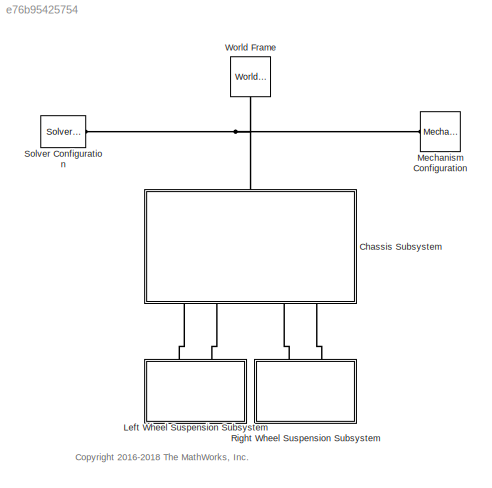
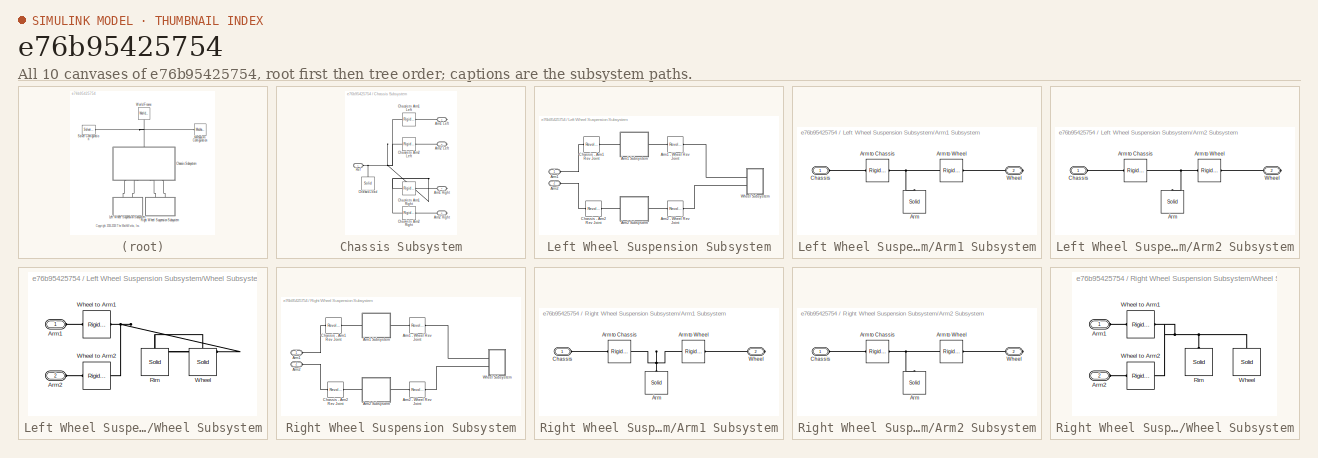
[diagram: thumbnail index - all 10 canvases of the model, root first then tree order]
MODEL slx_e76b95425754
KIND model
CONFIG AbsTol = auto
CONFIG EnableMultiTasking = on
CONFIG FixedStep = auto
CONFIG MaxStep = auto
CONFIG MinStep = auto
CONFIG PreLoadFcn = susp_ex_params
CONFIG RelTol = 1e-3
CONFIG SampleTimeConstraint = Unconstrained
CONFIG Solver = ode45
CONFIG SolverName = ode45
CONFIG StartTime = 0.0
CONFIG StopTime = 10
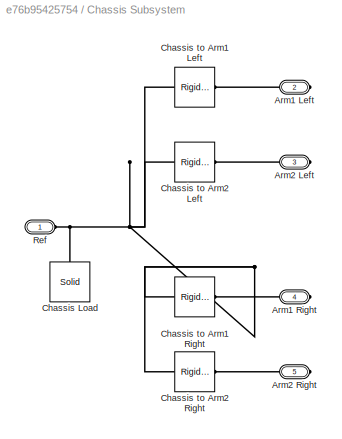
BLOCK [SubSystem] Chassis Subsystem
  Ports = [0, 0, 0, 0, 0, 1, 4]
  RequestExecContextInheritance = off
  Variant = off
BLOCK [PMIOPort] Chassis Subsystem/Arm1 Left
  Port = 2
  Side = Right
BLOCK [PMIOPort] Chassis Subsystem/Arm1 Right
  Port = 4
  Side = Right
BLOCK [PMIOPort] Chassis Subsystem/Arm2 Left
  Port = 3
  Side = Right
BLOCK [PMIOPort] Chassis Subsystem/Arm2 Right
  Port = 5
  Side = Right
BLOCK [Reference] Chassis Subsystem/Chassis Load  REF=sm_lib/Body Elements/Solid
  Ports = [0, 0, 0, 0, 0, 0, 1]
  SourceBlock = sm_lib/Body Elements/Solid
  SourceProductBaseCode = MS
  SourceProductName = Simscape Multibody
  SourceType = Solid
BLOCK [Reference] Chassis Subsystem/Chassis to Arm1 Left  REF=sm_lib/Frames and
Transforms/Rigid
Transform
  Ports = [0, 0, 0, 0, 0, 1, 1]
  SourceBlock = sm_lib/Frames and\nTransforms/Rigid\nTransform
  SourceProductBaseCode = MS
  SourceProductName = Simscape Multibody
  SourceType = Rigid\nTransform
BLOCK [Reference] Chassis Subsystem/Chassis to Arm1 Right  REF=sm_lib/Frames and
Transforms/Rigid
Transform
  Ports = [0, 0, 0, 0, 0, 1, 1]
  SourceBlock = sm_lib/Frames and\nTransforms/Rigid\nTransform
  SourceProductBaseCode = MS
  SourceProductName = Simscape Multibody
  SourceType = Rigid\nTransform
BLOCK [Reference] Chassis Subsystem/Chassis to Arm2 Left  REF=sm_lib/Frames and
Transforms/Rigid
Transform
  Ports = [0, 0, 0, 0, 0, 1, 1]
  SourceBlock = sm_lib/Frames and\nTransforms/Rigid\nTransform
  SourceProductBaseCode = MS
  SourceProductName = Simscape Multibody
  SourceType = Rigid\nTransform
BLOCK [Reference] Chassis Subsystem/Chassis to Arm2 Right  REF=sm_lib/Frames and
Transforms/Rigid
Transform
  Ports = [0, 0, 0, 0, 0, 1, 1]
  SourceBlock = sm_lib/Frames and\nTransforms/Rigid\nTransform
  SourceProductBaseCode = MS
  SourceProductName = Simscape Multibody
  SourceType = Rigid\nTransform
BLOCK [PMIOPort] Chassis Subsystem/Ref
  Port = 1
  Side = Left
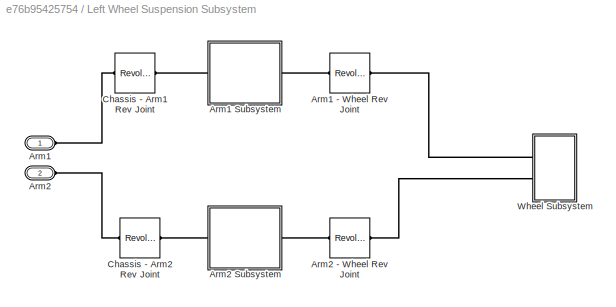
BLOCK [SubSystem] Left Wheel Suspension Subsystem
  Ports = [0, 0, 0, 0, 0, 2]
  RequestExecContextInheritance = off
  Variant = off
BLOCK [PMIOPort] Left Wheel Suspension Subsystem/Arm1
  Port = 1
  Side = Left
BLOCK [Reference] Left Wheel Suspension Subsystem/Arm1 - Wheel Rev Joint  REF=sm_lib/Joints/Revolute Joint
  Ports = [0, 0, 0, 0, 0, 1, 1]
  SourceBlock = sm_lib/Joints/Revolute Joint
  SourceProductBaseCode = MS
  SourceProductName = Simscape Multibody
  SourceType = Revolute Joint
BLOCK [SubSystem] Left Wheel Suspension Subsystem/Arm1 Subsystem
  Ports = [0, 0, 0, 0, 0, 1, 1]
  RequestExecContextInheritance = off
  Variant = off
BLOCK [Reference] Left Wheel Suspension Subsystem/Arm1 Subsystem/Arm  REF=sm_lib/Body Elements/Solid
  Ports = [0, 0, 0, 0, 0, 0, 1]
  SourceBlock = sm_lib/Body Elements/Solid
  SourceProductBaseCode = MS
  SourceProductName = Simscape Multibody
  SourceType = Solid
BLOCK [Reference] Left Wheel Suspension Subsystem/Arm1 Subsystem/Arm to Chassis  REF=sm_lib/Frames and
Transforms/Rigid
Transform
  Ports = [0, 0, 0, 0, 0, 1, 1]
  SourceBlock = sm_lib/Frames and\nTransforms/Rigid\nTransform
  SourceProductBaseCode = MS
  SourceProductName = Simscape Multibody
  SourceType = Rigid\nTransform
BLOCK [Reference] Left Wheel Suspension Subsystem/Arm1 Subsystem/Arm to Wheel  REF=sm_lib/Frames and
Transforms/Rigid
Transform
  Ports = [0, 0, 0, 0, 0, 1, 1]
  SourceBlock = sm_lib/Frames and\nTransforms/Rigid\nTransform
  SourceProductBaseCode = MS
  SourceProductName = Simscape Multibody
  SourceType = Rigid\nTransform
BLOCK [PMIOPort] Left Wheel Suspension Subsystem/Arm1 Subsystem/Chassis
  Port = 1
  Side = Left
BLOCK [PMIOPort] Left Wheel Suspension Subsystem/Arm1 Subsystem/Wheel
  Port = 2
  Side = Right
BLOCK [PMIOPort] Left Wheel Suspension Subsystem/Arm2
  Port = 2
  Side = Left
BLOCK [Reference] Left Wheel Suspension Subsystem/Arm2 - Wheel Rev Joint  REF=sm_lib/Joints/Revolute Joint
  Ports = [0, 0, 0, 0, 0, 1, 1]
  SourceBlock = sm_lib/Joints/Revolute Joint
  SourceProductBaseCode = MS
  SourceProductName = Simscape Multibody
  SourceType = Revolute Joint
BLOCK [SubSystem] Left Wheel Suspension Subsystem/Arm2 Subsystem
  Ports = [0, 0, 0, 0, 0, 1, 1]
  RequestExecContextInheritance = off
  Variant = off
BLOCK [Reference] Left Wheel Suspension Subsystem/Arm2 Subsystem/Arm  REF=sm_lib/Body Elements/Solid
  Ports = [0, 0, 0, 0, 0, 0, 1]
  SourceBlock = sm_lib/Body Elements/Solid
  SourceProductBaseCode = MS
  SourceProductName = Simscape Multibody
  SourceType = Solid
BLOCK [Reference] Left Wheel Suspension Subsystem/Arm2 Subsystem/Arm to Chassis  REF=sm_lib/Frames and
Transforms/Rigid
Transform
  Ports = [0, 0, 0, 0, 0, 1, 1]
  SourceBlock = sm_lib/Frames and\nTransforms/Rigid\nTransform
  SourceProductBaseCode = MS
  SourceProductName = Simscape Multibody
  SourceType = Rigid\nTransform
BLOCK [Reference] Left Wheel Suspension Subsystem/Arm2 Subsystem/Arm to Wheel  REF=sm_lib/Frames and
Transforms/Rigid
Transform
  Ports = [0, 0, 0, 0, 0, 1, 1]
  SourceBlock = sm_lib/Frames and\nTransforms/Rigid\nTransform
  SourceProductBaseCode = MS
  SourceProductName = Simscape Multibody
  SourceType = Rigid\nTransform
BLOCK [PMIOPort] Left Wheel Suspension Subsystem/Arm2 Subsystem/Chassis
  Port = 1
  Side = Left
BLOCK [PMIOPort] Left Wheel Suspension Subsystem/Arm2 Subsystem/Wheel
  Port = 2
  Side = Right
BLOCK [Reference] Left Wheel Suspension Subsystem/Chassis - Arm1 Rev Joint  REF=sm_lib/Joints/Revolute Joint
  Ports = [0, 0, 0, 0, 0, 1, 1]
  SourceBlock = sm_lib/Joints/Revolute Joint
  SourceProductBaseCode = MS
  SourceProductName = Simscape Multibody
  SourceType = Revolute Joint
BLOCK [Reference] Left Wheel Suspension Subsystem/Chassis - Arm2 Rev Joint  REF=sm_lib/Joints/Revolute Joint
  Ports = [0, 0, 0, 0, 0, 1, 1]
  SourceBlock = sm_lib/Joints/Revolute Joint
  SourceProductBaseCode = MS
  SourceProductName = Simscape Multibody
  SourceType = Revolute Joint
BLOCK [SubSystem] Left Wheel Suspension Subsystem/Wheel Subsystem
  Ports = [0, 0, 0, 0, 0, 2]
  RequestExecContextInheritance = off
  Variant = off
BLOCK [PMIOPort] Left Wheel Suspension Subsystem/Wheel Subsystem/Arm1
  Port = 1
  Side = Left
BLOCK [PMIOPort] Left Wheel Suspension Subsystem/Wheel Subsystem/Arm2
  Port = 2
  Side = Left
BLOCK [Reference] Left Wheel Suspension Subsystem/Wheel Subsystem/Rim  REF=sm_lib/Body Elements/Solid
  Ports = [0, 0, 0, 0, 0, 0, 1]
  SourceBlock = sm_lib/Body Elements/Solid
  SourceProductBaseCode = MS
  SourceProductName = Simscape Multibody
  SourceType = Solid
BLOCK [Reference] Left Wheel Suspension Subsystem/Wheel Subsystem/Wheel  REF=sm_lib/Body Elements/Solid
  Ports = [0, 0, 0, 0, 0, 0, 1]
  SourceBlock = sm_lib/Body Elements/Solid
  SourceProductBaseCode = MS
  SourceProductName = Simscape Multibody
  SourceType = Solid
BLOCK [Reference] Left Wheel Suspension Subsystem/Wheel Subsystem/Wheel to Arm1  REF=sm_lib/Frames and
Transforms/Rigid
Transform
  Ports = [0, 0, 0, 0, 0, 1, 1]
  SourceBlock = sm_lib/Frames and\nTransforms/Rigid\nTransform
  SourceProductBaseCode = MS
  SourceProductName = Simscape Multibody
  SourceType = Rigid\nTransform
BLOCK [Reference] Left Wheel Suspension Subsystem/Wheel Subsystem/Wheel to Arm2  REF=sm_lib/Frames and
Transforms/Rigid
Transform
  Ports = [0, 0, 0, 0, 0, 1, 1]
  SourceBlock = sm_lib/Frames and\nTransforms/Rigid\nTransform
  SourceProductBaseCode = MS
  SourceProductName = Simscape Multibody
  SourceType = Rigid\nTransform
BLOCK [Reference] Mechanism Configuration  REF=sm_lib/Utilities/Mechanism
Configuration
  Ports = [0, 0, 0, 0, 0, 0, 1]
  SourceBlock = sm_lib/Utilities/Mechanism\nConfiguration
  SourceProductBaseCode = MS
  SourceProductName = Simscape Multibody
  SourceType = Mechanism\nConfiguration
BLOCK [SubSystem] Right Wheel Suspension Subsystem
  Ports = [0, 0, 0, 0, 0, 2]
  RequestExecContextInheritance = off
  Variant = off
BLOCK [PMIOPort] Right Wheel Suspension Subsystem/Arm1
  Port = 1
  Side = Left
BLOCK [Reference] Right Wheel Suspension Subsystem/Arm1 - Wheel Rev Joint  REF=sm_lib/Joints/Revolute Joint
  Ports = [0, 0, 0, 0, 0, 1, 1]
  SourceBlock = sm_lib/Joints/Revolute Joint
  SourceProductBaseCode = MS
  SourceProductName = Simscape Multibody
  SourceType = Revolute Joint
BLOCK [SubSystem] Right Wheel Suspension Subsystem/Arm1 Subsystem
  Ports = [0, 0, 0, 0, 0, 1, 1]
  RequestExecContextInheritance = off
  Variant = off
BLOCK [Reference] Right Wheel Suspension Subsystem/Arm1 Subsystem/Arm  REF=sm_lib/Body Elements/Solid
  Ports = [0, 0, 0, 0, 0, 0, 1]
  SourceBlock = sm_lib/Body Elements/Solid
  SourceProductBaseCode = MS
  SourceProductName = Simscape Multibody
  SourceType = Solid
BLOCK [Reference] Right Wheel Suspension Subsystem/Arm1 Subsystem/Arm to Chassis  REF=sm_lib/Frames and
Transforms/Rigid
Transform
  Ports = [0, 0, 0, 0, 0, 1, 1]
  SourceBlock = sm_lib/Frames and\nTransforms/Rigid\nTransform
  SourceProductBaseCode = MS
  SourceProductName = Simscape Multibody
  SourceType = Rigid\nTransform
BLOCK [Reference] Right Wheel Suspension Subsystem/Arm1 Subsystem/Arm to Wheel  REF=sm_lib/Frames and
Transforms/Rigid
Transform
  Ports = [0, 0, 0, 0, 0, 1, 1]
  SourceBlock = sm_lib/Frames and\nTransforms/Rigid\nTransform
  SourceProductBaseCode = MS
  SourceProductName = Simscape Multibody
  SourceType = Rigid\nTransform
BLOCK [PMIOPort] Right Wheel Suspension Subsystem/Arm1 Subsystem/Chassis
  Port = 1
  Side = Left
BLOCK [PMIOPort] Right Wheel Suspension Subsystem/Arm1 Subsystem/Wheel
  Port = 2
  Side = Right
BLOCK [PMIOPort] Right Wheel Suspension Subsystem/Arm2
  Port = 2
  Side = Left
BLOCK [Reference] Right Wheel Suspension Subsystem/Arm2 - Wheel Rev Joint  REF=sm_lib/Joints/Revolute Joint
  Ports = [0, 0, 0, 0, 0, 1, 1]
  SourceBlock = sm_lib/Joints/Revolute Joint
  SourceProductBaseCode = MS
  SourceProductName = Simscape Multibody
  SourceType = Revolute Joint
BLOCK [SubSystem] Right Wheel Suspension Subsystem/Arm2 Subsystem
  Ports = [0, 0, 0, 0, 0, 1, 1]
  RequestExecContextInheritance = off
  Variant = off
BLOCK [Reference] Right Wheel Suspension Subsystem/Arm2 Subsystem/Arm  REF=sm_lib/Body Elements/Solid
  Ports = [0, 0, 0, 0, 0, 0, 1]
  SourceBlock = sm_lib/Body Elements/Solid
  SourceProductBaseCode = MS
  SourceProductName = Simscape Multibody
  SourceType = Solid
BLOCK [Reference] Right Wheel Suspension Subsystem/Arm2 Subsystem/Arm to Chassis  REF=sm_lib/Frames and
Transforms/Rigid
Transform
  Ports = [0, 0, 0, 0, 0, 1, 1]
  SourceBlock = sm_lib/Frames and\nTransforms/Rigid\nTransform
  SourceProductBaseCode = MS
  SourceProductName = Simscape Multibody
  SourceType = Rigid\nTransform
BLOCK [Reference] Right Wheel Suspension Subsystem/Arm2 Subsystem/Arm to Wheel  REF=sm_lib/Frames and
Transforms/Rigid
Transform
  Ports = [0, 0, 0, 0, 0, 1, 1]
  SourceBlock = sm_lib/Frames and\nTransforms/Rigid\nTransform
  SourceProductBaseCode = MS
  SourceProductName = Simscape Multibody
  SourceType = Rigid\nTransform
BLOCK [PMIOPort] Right Wheel Suspension Subsystem/Arm2 Subsystem/Chassis
  Port = 1
  Side = Left
BLOCK [PMIOPort] Right Wheel Suspension Subsystem/Arm2 Subsystem/Wheel
  Port = 2
  Side = Right
BLOCK [Reference] Right Wheel Suspension Subsystem/Chassis - Arm1 Rev Joint  REF=sm_lib/Joints/Revolute Joint
  Ports = [0, 0, 0, 0, 0, 1, 1]
  SourceBlock = sm_lib/Joints/Revolute Joint
  SourceProductBaseCode = MS
  SourceProductName = Simscape Multibody
  SourceType = Revolute Joint
BLOCK [Reference] Right Wheel Suspension Subsystem/Chassis - Arm2 Rev Joint  REF=sm_lib/Joints/Revolute Joint
  Ports = [0, 0, 0, 0, 0, 1, 1]
  SourceBlock = sm_lib/Joints/Revolute Joint
  SourceProductBaseCode = MS
  SourceProductName = Simscape Multibody
  SourceType = Revolute Joint
BLOCK [SubSystem] Right Wheel Suspension Subsystem/Wheel Subsystem
  Ports = [0, 0, 0, 0, 0, 2]
  RequestExecContextInheritance = off
  Variant = off
BLOCK [PMIOPort] Right Wheel Suspension Subsystem/Wheel Subsystem/Arm1
  Port = 1
  Side = Left
BLOCK [PMIOPort] Right Wheel Suspension Subsystem/Wheel Subsystem/Arm2
  Port = 2
  Side = Left
BLOCK [Reference] Right Wheel Suspension Subsystem/Wheel Subsystem/Rim  REF=sm_lib/Body Elements/Solid
  Ports = [0, 0, 0, 0, 0, 0, 1]
  SourceBlock = sm_lib/Body Elements/Solid
  SourceProductBaseCode = MS
  SourceProductName = Simscape Multibody
  SourceType = Solid
BLOCK [Reference] Right Wheel Suspension Subsystem/Wheel Subsystem/Wheel  REF=sm_lib/Body Elements/Solid
  Ports = [0, 0, 0, 0, 0, 0, 1]
  SourceBlock = sm_lib/Body Elements/Solid
  SourceProductBaseCode = MS
  SourceProductName = Simscape Multibody
  SourceType = Solid
BLOCK [Reference] Right Wheel Suspension Subsystem/Wheel Subsystem/Wheel to Arm1  REF=sm_lib/Frames and
Transforms/Rigid
Transform
  Ports = [0, 0, 0, 0, 0, 1, 1]
  SourceBlock = sm_lib/Frames and\nTransforms/Rigid\nTransform
  SourceProductBaseCode = MS
  SourceProductName = Simscape Multibody
  SourceType = Rigid\nTransform
BLOCK [Reference] Right Wheel Suspension Subsystem/Wheel Subsystem/Wheel to Arm2  REF=sm_lib/Frames and
Transforms/Rigid
Transform
  Ports = [0, 0, 0, 0, 0, 1, 1]
  SourceBlock = sm_lib/Frames and\nTransforms/Rigid\nTransform
  SourceProductBaseCode = MS
  SourceProductName = Simscape Multibody
  SourceType = Rigid\nTransform
BLOCK [Reference] Solver Configuration  REF=nesl_utility/Solver
Configuration
  Ports = [0, 0, 0, 0, 0, 0, 1]
  SourceBlock = nesl_utility/Solver\nConfiguration
  SourceProductBaseCode = SS
  SourceProductName = Simscape
  SourceType = Solver\nConfiguration
BLOCK [Reference] World Frame  REF=sm_lib/Frames and
Transforms/World Frame
  Ports = [0, 0, 0, 0, 0, 0, 1]
  SourceBlock = sm_lib/Frames and\nTransforms/World Frame
  SourceProductBaseCode = MS
  SourceProductName = Simscape Multibody
  SourceType = World Frame
ANNOTATION (root): <copyright redacted>
PLINE Chassis Subsystem/Arm1 Left:RConn1 -- Chassis Subsystem/Chassis to Arm1 Left:RConn1
PLINE Chassis Subsystem/Arm1 Right:RConn1 -- Chassis Subsystem/Chassis to Arm1 Right:RConn1
PLINE Chassis Subsystem/Arm2 Left:RConn1 -- Chassis Subsystem/Chassis to Arm2 Left:RConn1
PLINE Chassis Subsystem/Arm2 Right:RConn1 -- Chassis Subsystem/Chassis to Arm2 Right:RConn1
PNET net1: Chassis Subsystem/Chassis Load:RConn1 -- Chassis Subsystem/Chassis to Arm1 Left:LConn1 -- Chassis Subsystem/Chassis to Arm1 Right:LConn1 -- Chassis Subsystem/Chassis to Arm2 Left:LConn1 -- Chassis Subsystem/Chassis to Arm2 Right:LConn1 -- Chassis Subsystem/Ref:RConn1
PNET net2: Chassis Subsystem:LConn1 -- Mechanism Configuration:RConn1 -- Solver Configuration:RConn1 -- World Frame:RConn1
PLINE Chassis Subsystem:RConn1 -- Left Wheel Suspension Subsystem:LConn1
PLINE Chassis Subsystem:RConn2 -- Left Wheel Suspension Subsystem:LConn2
PLINE Chassis Subsystem:RConn3 -- Right Wheel Suspension Subsystem:LConn1
PLINE Chassis Subsystem:RConn4 -- Right Wheel Suspension Subsystem:LConn2
PLINE Left Wheel Suspension Subsystem/Arm1 - Wheel Rev Joint:LConn1 -- Left Wheel Suspension Subsystem/Arm1 Subsystem:RConn1
PLINE Left Wheel Suspension Subsystem/Arm1 - Wheel Rev Joint:RConn1 -- Left Wheel Suspension Subsystem/Wheel Subsystem:LConn1
PNET net3: Left Wheel Suspension Subsystem/Arm1 Subsystem/Arm to Chassis:LConn1 -- Left Wheel Suspension Subsystem/Arm1 Subsystem/Arm to Wheel:LConn1 -- Left Wheel Suspension Subsystem/Arm1 Subsystem/Arm:RConn1
PLINE Left Wheel Suspension Subsystem/Arm1 Subsystem/Arm to Chassis:RConn1 -- Left Wheel Suspension Subsystem/Arm1 Subsystem/Chassis:RConn1
PLINE Left Wheel Suspension Subsystem/Arm1 Subsystem/Arm to Wheel:RConn1 -- Left Wheel Suspension Subsystem/Arm1 Subsystem/Wheel:RConn1
PLINE Left Wheel Suspension Subsystem/Arm1 Subsystem:LConn1 -- Left Wheel Suspension Subsystem/Chassis - Arm1 Rev Joint:RConn1
PLINE Left Wheel Suspension Subsystem/Arm1:RConn1 -- Left Wheel Suspension Subsystem/Chassis - Arm1 Rev Joint:LConn1
PLINE Left Wheel Suspension Subsystem/Arm2 - Wheel Rev Joint:LConn1 -- Left Wheel Suspension Subsystem/Arm2 Subsystem:RConn1
PLINE Left Wheel Suspension Subsystem/Arm2 - Wheel Rev Joint:RConn1 -- Left Wheel Suspension Subsystem/Wheel Subsystem:LConn2
PNET net4: Left Wheel Suspension Subsystem/Arm2 Subsystem/Arm to Chassis:LConn1 -- Left Wheel Suspension Subsystem/Arm2 Subsystem/Arm to Wheel:LConn1 -- Left Wheel Suspension Subsystem/Arm2 Subsystem/Arm:RConn1
PLINE Left Wheel Suspension Subsystem/Arm2 Subsystem/Arm to Chassis:RConn1 -- Left Wheel Suspension Subsystem/Arm2 Subsystem/Chassis:RConn1
PLINE Left Wheel Suspension Subsystem/Arm2 Subsystem/Arm to Wheel:RConn1 -- Left Wheel Suspension Subsystem/Arm2 Subsystem/Wheel:RConn1
PLINE Left Wheel Suspension Subsystem/Arm2 Subsystem:LConn1 -- Left Wheel Suspension Subsystem/Chassis - Arm2 Rev Joint:RConn1
PLINE Left Wheel Suspension Subsystem/Arm2:RConn1 -- Left Wheel Suspension Subsystem/Chassis - Arm2 Rev Joint:LConn1
PLINE Left Wheel Suspension Subsystem/Wheel Subsystem/Arm1:RConn1 -- Left Wheel Suspension Subsystem/Wheel Subsystem/Wheel to Arm1:RConn1
PLINE Left Wheel Suspension Subsystem/Wheel Subsystem/Arm2:RConn1 -- Left Wheel Suspension Subsystem/Wheel Subsystem/Wheel to Arm2:RConn1
PNET net5: Left Wheel Suspension Subsystem/Wheel Subsystem/Rim:RConn1 -- Left Wheel Suspension Subsystem/Wheel Subsystem/Wheel to Arm1:LConn1 -- Left Wheel Suspension Subsystem/Wheel Subsystem/Wheel to Arm2:LConn1 -- Left Wheel Suspension Subsystem/Wheel Subsystem/Wheel:RConn1
PLINE Right Wheel Suspension Subsystem/Arm1 - Wheel Rev Joint:LConn1 -- Right Wheel Suspension Subsystem/Arm1 Subsystem:RConn1
PLINE Right Wheel Suspension Subsystem/Arm1 - Wheel Rev Joint:RConn1 -- Right Wheel Suspension Subsystem/Wheel Subsystem:LConn1
PNET net6: Right Wheel Suspension Subsystem/Arm1 Subsystem/Arm to Chassis:LConn1 -- Right Wheel Suspension Subsystem/Arm1 Subsystem/Arm to Wheel:LConn1 -- Right Wheel Suspension Subsystem/Arm1 Subsystem/Arm:RConn1
PLINE Right Wheel Suspension Subsystem/Arm1 Subsystem/Arm to Chassis:RConn1 -- Right Wheel Suspension Subsystem/Arm1 Subsystem/Chassis:RConn1
PLINE Right Wheel Suspension Subsystem/Arm1 Subsystem/Arm to Wheel:RConn1 -- Right Wheel Suspension Subsystem/Arm1 Subsystem/Wheel:RConn1
PLINE Right Wheel Suspension Subsystem/Arm1 Subsystem:LConn1 -- Right Wheel Suspension Subsystem/Chassis - Arm1 Rev Joint:RConn1
PLINE Right Wheel Suspension Subsystem/Arm1:RConn1 -- Right Wheel Suspension Subsystem/Chassis - Arm1 Rev Joint:LConn1
PLINE Right Wheel Suspension Subsystem/Arm2 - Wheel Rev Joint:LConn1 -- Right Wheel Suspension Subsystem/Arm2 Subsystem:RConn1
PLINE Right Wheel Suspension Subsystem/Arm2 - Wheel Rev Joint:RConn1 -- Right Wheel Suspension Subsystem/Wheel Subsystem:LConn2
PNET net7: Right Wheel Suspension Subsystem/Arm2 Subsystem/Arm to Chassis:LConn1 -- Right Wheel Suspension Subsystem/Arm2 Subsystem/Arm to Wheel:LConn1 -- Right Wheel Suspension Subsystem/Arm2 Subsystem/Arm:RConn1
PLINE Right Wheel Suspension Subsystem/Arm2 Subsystem/Arm to Chassis:RConn1 -- Right Wheel Suspension Subsystem/Arm2 Subsystem/Chassis:RConn1
PLINE Right Wheel Suspension Subsystem/Arm2 Subsystem/Arm to Wheel:RConn1 -- Right Wheel Suspension Subsystem/Arm2 Subsystem/Wheel:RConn1
PLINE Right Wheel Suspension Subsystem/Arm2 Subsystem:LConn1 -- Right Wheel Suspension Subsystem/Chassis - Arm2 Rev Joint:RConn1
PLINE Right Wheel Suspension Subsystem/Arm2:RConn1 -- Right Wheel Suspension Subsystem/Chassis - Arm2 Rev Joint:LConn1
PLINE Right Wheel Suspension Subsystem/Wheel Subsystem/Arm1:RConn1 -- Right Wheel Suspension Subsystem/Wheel Subsystem/Wheel to Arm1:RConn1
PLINE Right Wheel Suspension Subsystem/Wheel Subsystem/Arm2:RConn1 -- Right Wheel Suspension Subsystem/Wheel Subsystem/Wheel to Arm2:RConn1
PNET net8: Right Wheel Suspension Subsystem/Wheel Subsystem/Rim:RConn1 -- Right Wheel Suspension Subsystem/Wheel Subsystem/Wheel to Arm1:LConn1 -- Right Wheel Suspension Subsystem/Wheel Subsystem/Wheel to Arm2:LConn1 -- Right Wheel Suspension Subsystem/Wheel Subsystem/Wheel:RConn1
note: PNET lines group multi-terminal physical nets as a canonical sorted terminal list (undirected conserving connections); 2-terminal nets keep the pairwise PLINE form
